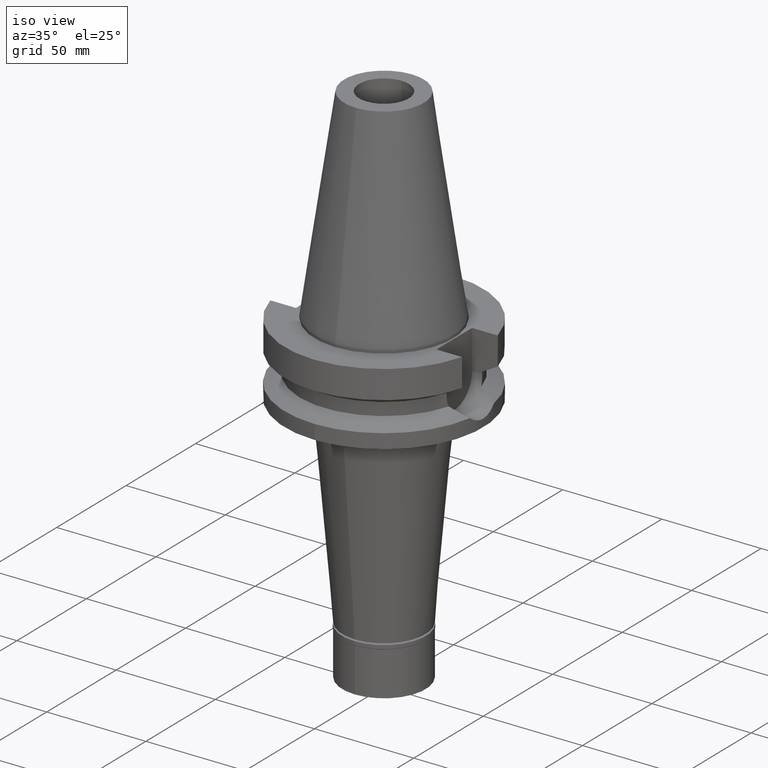
[diagram: clean part render]
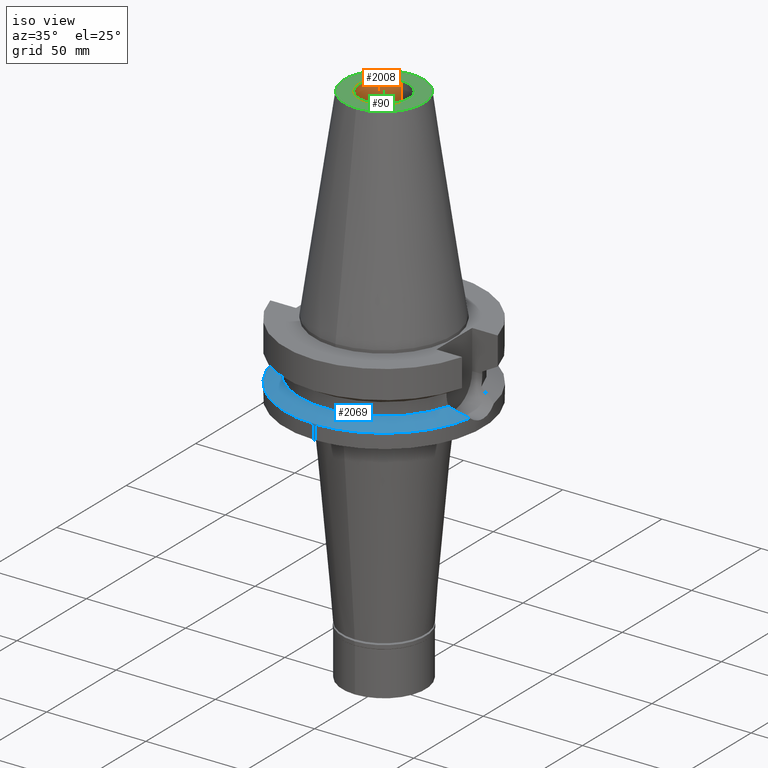
[diagram: same view with three faces highlighted in distinct colors, each labeled with its STEP entity id]
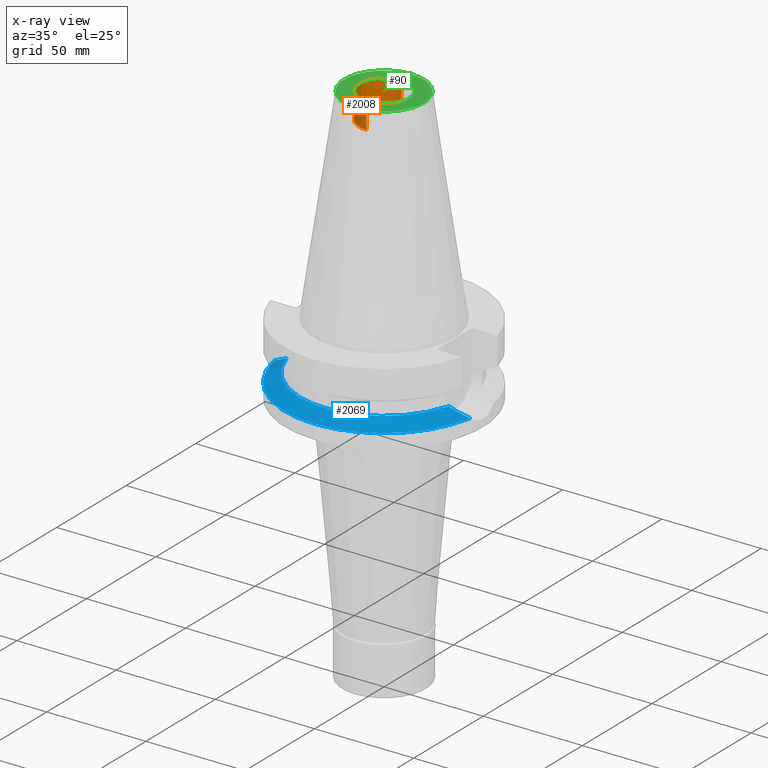
[diagram: x-ray of the same camera — body ghosted, the three highlighted faces saturated]
A machine part, iso view with three faces highlighted in distinct colors.
The next image is the same camera in x-ray (body ghosted, the three faces saturated) — at least one of them is partly hidden behind the body in this view.
Their STEP definitions:

[orange] entity #2008 — the highlighted cylindrical surface (edge-blend (fillet) strip) has radius 12.5 mm, axis along (0, 0, -1).
#55 = CARTESIAN_POINT ( 'NONE',  ( 0.0000000000000000000, -12.50000000000000000, 101.7999999999999972 ) ) ;
#325 = ORIENTED_EDGE ( 'NONE', *, *, #366, .T. ) ;
#336 = VERTEX_POINT ( 'NONE', #55 ) ;
#343 = FACE_OUTER_BOUND ( 'NONE', #2740, .T. ) ;
#366 = EDGE_CURVE ( 'NONE', #2766, #2984, #3004, .T. ) ;
#441 = DIRECTION ( 'NONE',  ( 0.0000000000000000000, 0.0000000000000000000, -1.000000000000000000 ) ) ;
#511 = CARTESIAN_POINT ( 'NONE',  ( 0.0000000000000000000, 2.630112698188999834E-14, 114.7650000000000006 ) ) ;
#524 = DIRECTION ( 'NONE',  ( 0.0000000000000000000, 0.0000000000000000000, 1.000000000000000000 ) ) ;
#541 = EDGE_CURVE ( 'NONE', #1937, #336, #1613, .T. ) ;
#586 = EDGE_CURVE ( 'NONE', #1937, #2766, #2772, .T. ) ;
#588 = CARTESIAN_POINT ( 'NONE',  ( 0.0000000000000000000, -12.50000000000000000, 88.79999999999999716 ) ) ;
#600 = DIRECTION ( 'NONE',  ( 0.0000000000000000000, 0.0000000000000000000, 1.000000000000000000 ) ) ;
#800 = CARTESIAN_POINT ( 'NONE',  ( 0.0000000000000000000, 12.50000000000000000, 88.79999999999999716 ) ) ;
#897 = DIRECTION ( 'NONE',  ( 0.0000000000000000000, -1.000000000000000000, 0.0000000000000000000 ) ) ;
#1222 = AXIS2_PLACEMENT_3D ( 'NONE', #3175, #441, #897 ) ;
#1337 = CYLINDRICAL_SURFACE ( 'NONE', #2659, 12.50000000000000000 ) ;
#1418 = VECTOR ( 'NONE', #600, 1000.000000000000000 ) ;
#1544 = CARTESIAN_POINT ( 'NONE',  ( 0.0000000000000000000, -12.50000000000000000, 88.79999999999999716 ) ) ;
#1613 = LINE ( 'NONE', #588, #1418 ) ;
#1719 = AXIS2_PLACEMENT_3D ( 'NONE', #2941, #2959, #1919 ) ;
#1760 = DIRECTION ( 'NONE',  ( 0.0000000000000000000, -1.000000000000000000, 0.0000000000000000000 ) ) ;
#1919 = DIRECTION ( 'NONE',  ( 0.0000000000000000000, 1.000000000000000000, 0.0000000000000000000 ) ) ;
#1937 = VERTEX_POINT ( 'NONE', #1544 ) ;
#2008 = ADVANCED_FACE ( 'NONE', ( #343 ), #1337, .F. ) ;
#2249 = ORIENTED_EDGE ( 'NONE', *, *, #2407, .T. ) ;
#2260 = VECTOR ( 'NONE', #524, 1000.000000000000000 ) ;
#2280 = ORIENTED_EDGE ( 'NONE', *, *, #586, .T. ) ;
#2407 = EDGE_CURVE ( 'NONE', #2984, #336, #3060, .T. ) ;
#2453 = CARTESIAN_POINT ( 'NONE',  ( 0.0000000000000000000, 12.50000000000000000, 101.7999999999999972 ) ) ;
#2617 = CARTESIAN_POINT ( 'NONE',  ( 0.0000000000000000000, 12.50000000000000000, 88.79999999999999716 ) ) ;
#2659 = AXIS2_PLACEMENT_3D ( 'NONE', #511, #2980, #1760 ) ;
#2740 = EDGE_LOOP ( 'NONE', ( #2249, #2978, #2280, #325 ) ) ;
#2766 = VERTEX_POINT ( 'NONE', #2617 ) ;
#2772 = CIRCLE ( 'NONE', #1222, 12.50000000000000000 ) ;
#2941 = CARTESIAN_POINT ( 'NONE',  ( 0.0000000000000000000, 2.630112698188999834E-14, 101.7999999999999972 ) ) ;
#2959 = DIRECTION ( 'NONE',  ( 0.0000000000000000000, 0.0000000000000000000, 1.000000000000000000 ) ) ;
#2978 = ORIENTED_EDGE ( 'NONE', *, *, #541, .F. ) ;
#2980 = DIRECTION ( 'NONE',  ( 0.0000000000000000000, 0.0000000000000000000, -1.000000000000000000 ) ) ;
#2984 = VERTEX_POINT ( 'NONE', #2453 ) ;
#3004 = LINE ( 'NONE', #800, #2260 ) ;
#3060 = CIRCLE ( 'NONE', #1719, 12.50000000000000000 ) ;
#3175 = CARTESIAN_POINT ( 'NONE',  ( 0.0000000000000000000, 2.630112698188999834E-14, 88.79999999999999716 ) ) ;

[blue] entity #2069 — the highlighted conical surface has half-angle 60 deg.
#54 = ORIENTED_EDGE ( 'NONE', *, *, #2850, .F. ) ;
#99 = CARTESIAN_POINT ( 'NONE',  ( 45.19859105778819242, -10.43329533872213766, -28.65160101983898144 ) ) ;
#102 = CARTESIAN_POINT ( 'NONE',  ( -44.01771955491133781, -10.87571219025350722, -28.04378263976339625 ) ) ;
#143 = ORIENTED_EDGE ( 'NONE', *, *, #306, .F. ) ;
#172 = VERTEX_POINT ( 'NONE', #223 ) ;
#223 = CARTESIAN_POINT ( 'NONE',  ( 40.85052569294000335, -11.72538061688000077, -26.40718074535000426 ) ) ;
#306 = EDGE_CURVE ( 'NONE', #1025, #172, #2471, .T. ) ;
#311 = CARTESIAN_POINT ( 'NONE',  ( 41.72590016032629023, -11.52209377113396016, -26.86058262674692187 ) ) ;
#443 = EDGE_CURVE ( 'NONE', #2182, #1025, #1546, .T. ) ;
#449 = EDGE_CURVE ( 'NONE', #1557, #1177, #1002, .T. ) ;
#518 = CONICAL_SURFACE ( 'NONE', #1095, 46.25000000000000000, 1.047197551196400456 ) ;
#536 = AXIS2_PLACEMENT_3D ( 'NONE', #2090, #1879, #827 ) ;
#681 = CARTESIAN_POINT ( 'NONE',  ( -46.22843264989457879, -10.03199715389320268, -29.18088417617022756 ) ) ;
#687 = CARTESIAN_POINT ( 'NONE',  ( -48.08197963779082329, -9.200190436425408791, -30.13259996065814761 ) ) ;
#807 = CARTESIAN_POINT ( 'NONE',  ( 44.62920876815107363, -10.63817629232460682, -28.35862114344412532 ) ) ;
#822 = CARTESIAN_POINT ( 'NONE',  ( 43.71201865152598742, -10.94531036526928425, -27.88620737511890368 ) ) ;
#827 = DIRECTION ( 'NONE',  ( 0.9852500129747439050, -0.1711210446826074982, 0.0000000000000000000 ) ) ;
#832 = CARTESIAN_POINT ( 'NONE',  ( 0.0000000000000000000, 0.0000000000000000000, -26.40718074535000426 ) ) ;
#859 = CARTESIAN_POINT ( 'NONE',  ( 45.34789677712240064, -10.37745736648755290, -28.72840086249075497 ) ) ;
#877 = CARTESIAN_POINT ( 'NONE',  ( -42.52907658095612220, -11.33557336505510982, -27.27658939159396212 ) ) ;
#919 = EDGE_CURVE ( 'NONE', #172, #1557, #1114, .T. ) ;
#1002 = CIRCLE ( 'NONE', #536, 50.00000000000000000 ) ;
#1025 = VERTEX_POINT ( 'NONE', #1922 ) ;
#1079 = CARTESIAN_POINT ( 'NONE',  ( -45.47936879556448275, -10.32798328989315451, -28.79570470443810848 ) ) ;
#1089 = DIRECTION ( 'NONE',  ( 0.0000000000000000000, -1.000000000000000000, 0.0000000000000000000 ) ) ;
#1095 = AXIS2_PLACEMENT_3D ( 'NONE', #2879, #1407, #1089 ) ;
#1107 = CARTESIAN_POINT ( 'NONE',  ( 40.85052569294000335, -11.72538061688000077, -26.40718074535000426 ) ) ;
#1114 = B_SPLINE_CURVE_WITH_KNOTS ( 'NONE', 3,
 ( #1107, #311, #2334, #822, #2060, #807, #1874, #99, #859, #2547, #3035, #2104, #1848, #1350, #2591 ),
 .UNSPECIFIED., .F., .F.,
 ( 4, 2, 2, 1, 1, 1, 2, 2, 4 ),
 ( 0.0000000000000000000, 0.2500000000000137668, 0.3750000000000206501, 0.4375000000000240918, 0.4687500000000247580, 0.4843750000000251466, 0.4921875000000251466, 0.5000000000000250910, 1.000000000000000000 ),
 .UNSPECIFIED. ) ;
#1177 = VERTEX_POINT ( 'NONE', #1388 ) ;
#1299 = ORIENTED_EDGE ( 'NONE', *, *, #443, .F. ) ;
#1349 = FACE_OUTER_BOUND ( 'NONE', #1541, .T. ) ;
#1350 = CARTESIAN_POINT ( 'NONE',  ( 48.17420032857211964, -9.180590730264180266, -30.17994754109454547 ) ) ;
#1388 = CARTESIAN_POINT ( 'NONE',  ( 0.0000000000000000000, -50.00000000000000000, -30.73730776426999967 ) ) ;
#1407 = DIRECTION ( 'NONE',  ( 0.0000000000000000000, 0.0000000000000000000, -1.000000000000000000 ) ) ;
#1541 = EDGE_LOOP ( 'NONE', ( #54, #2889, #2356, #143, #1299 ) ) ;
#1546 = B_SPLINE_CURVE_WITH_KNOTS ( 'NONE', 3,
 ( #1875, #2802, #687, #2190, #2981, #681, #2946, #3085, #1079, #2353, #2851, #2838, #2323, #102, #877, #2373 ),
 .UNSPECIFIED., .F., .F.,
 ( 4, 2, 2, 1, 1, 1, 1, 2, 2, 4 ),
 ( 0.0000000000000000000, 0.2500000000000039968, 0.3750000000000049960, 0.4375000000000054956, 0.4687500000000056621, 0.4843750000000054401, 0.4921875000000043299, 0.4960937500000037748, 0.5000000000000032196, 1.000000000000000000 ),
 .UNSPECIFIED. ) ;
#1557 = VERTEX_POINT ( 'NONE', #2535 ) ;
#1594 = DIRECTION ( 'NONE',  ( 0.0000000000000000000, -1.000000000000000000, 0.0000000000000000000 ) ) ;
#1835 = AXIS2_PLACEMENT_3D ( 'NONE', #2112, #1890, #2876 ) ;
#1848 = CARTESIAN_POINT ( 'NONE',  ( 46.91863993414532530, -9.778693490640506525, -29.53628139518374240 ) ) ;
#1860 = CARTESIAN_POINT ( 'NONE',  ( -49.26250064874000145, -8.556052234130000045, -30.73730776426999967 ) ) ;
#1874 = CARTESIAN_POINT ( 'NONE',  ( 44.89583052612895386, -10.54429304563547376, -28.49584424594169363 ) ) ;
#1875 = CARTESIAN_POINT ( 'NONE',  ( -49.26250064874000145, -8.556052234130000045, -30.73730776426999967 ) ) ;
#1879 = DIRECTION ( 'NONE',  ( 0.0000000000000000000, 0.0000000000000000000, -1.000000000000000000 ) ) ;
#1890 = DIRECTION ( 'NONE',  ( 0.0000000000000000000, 0.0000000000000000000, -1.000000000000000000 ) ) ;
#1922 = CARTESIAN_POINT ( 'NONE',  ( -40.85052569294000335, -11.72538061688000077, -26.40718074535000426 ) ) ;
#2044 = CIRCLE ( 'NONE', #1835, 50.00000000000000000 ) ;
#2060 = CARTESIAN_POINT ( 'NONE',  ( 44.08648161107352337, -10.82400520407422562, -28.07917497306296539 ) ) ;
#2069 = ADVANCED_FACE ( 'NONE', ( #1349 ), #518, .T. ) ;
#2090 = CARTESIAN_POINT ( 'NONE',  ( 0.0000000000000000000, 0.0000000000000000000, -30.73730776426999967 ) ) ;
#2104 = CARTESIAN_POINT ( 'NONE',  ( 45.47358789563644876, -10.32988363272621868, -28.79304957371047990 ) ) ;
#2112 = CARTESIAN_POINT ( 'NONE',  ( 0.0000000000000000000, 0.0000000000000000000, -30.73730776426999967 ) ) ;
#2182 = VERTEX_POINT ( 'NONE', #1860 ) ;
#2190 = CARTESIAN_POINT ( 'NONE',  ( -47.09546812930723547, -9.660553051291596915, -29.62633418838047206 ) ) ;
#2311 = DIRECTION ( 'NONE',  ( 0.0000000000000000000, 0.0000000000000000000, 1.000000000000000000 ) ) ;
#2323 = CARTESIAN_POINT ( 'NONE',  ( -45.32660098246103786, -10.38562687605666746, -28.71711940367496751 ) ) ;
#2334 = CARTESIAN_POINT ( 'NONE',  ( 42.55069520839606412, -11.29929921158055528, -27.28706546306013792 ) ) ;
#2353 = CARTESIAN_POINT ( 'NONE',  ( -45.39806531743589346, -10.35875764774025320, -28.75388227991981793 ) ) ;
#2356 = ORIENTED_EDGE ( 'NONE', *, *, #919, .F. ) ;
#2373 = CARTESIAN_POINT ( 'NONE',  ( -40.85052569294000335, -11.72538061688000077, -26.40718074535000426 ) ) ;
#2471 = CIRCLE ( 'NONE', #2571, 42.50000000000000000 ) ;
#2535 = CARTESIAN_POINT ( 'NONE',  ( 49.26250064874000145, -8.556052234130000045, -30.73730776426999967 ) ) ;
#2547 = CARTESIAN_POINT ( 'NONE',  ( 45.41144039687376477, -10.35345708576471679, -28.76108458968403525 ) ) ;
#2571 = AXIS2_PLACEMENT_3D ( 'NONE', #832, #2311, #1594 ) ;
#2591 = CARTESIAN_POINT ( 'NONE',  ( 49.26250064874000145, -8.556052234130000045, -30.73730776426999967 ) ) ;
#2802 = CARTESIAN_POINT ( 'NONE',  ( -48.69471142110356254, -8.881887138133908621, -30.44652118195681467 ) ) ;
#2838 = CARTESIAN_POINT ( 'NONE',  ( -45.33980487532517145, -10.38067501081927091, -28.72391190103832059 ) ) ;
#2850 = EDGE_CURVE ( 'NONE', #1177, #2182, #2044, .T. ) ;
#2851 = CARTESIAN_POINT ( 'NONE',  ( -45.36312221893381746, -10.37191262343441878, -28.73590691326878854 ) ) ;
#2876 = DIRECTION ( 'NONE',  ( 0.0000000000000000000, -1.000000000000000000, 0.0000000000000000000 ) ) ;
#2879 = CARTESIAN_POINT ( 'NONE',  ( 0.0000000000000000000, 0.0000000000000000000, -28.57224425480999841 ) ) ;
#2889 = ORIENTED_EDGE ( 'NONE', *, *, #449, .F. ) ;
#2946 = CARTESIAN_POINT ( 'NONE',  ( -45.96073794980038230, -10.14115512855841494, -29.04327255906435568 ) ) ;
#2981 = CARTESIAN_POINT ( 'NONE',  ( -46.75539532089361217, -9.811152715186009843, -29.45168974284336727 ) ) ;
#3035 = CARTESIAN_POINT ( 'NONE',  ( 45.45370402211300132, -10.33744173023089097, -28.78282259273581545 ) ) ;
#3085 = CARTESIAN_POINT ( 'NONE',  ( -45.64105407831656436, -10.26611969352383014, -28.87886888763697968 ) ) ;

[green] entity #90 — the highlighted planar face has unit normal (0, 0, -1).
#55 = CARTESIAN_POINT ( 'NONE',  ( 0.0000000000000000000, -12.50000000000000000, 101.7999999999999972 ) ) ;
#90 = ADVANCED_FACE ( 'NONE', ( #1625, #2380 ), #2621, .F. ) ;
#230 = CARTESIAN_POINT ( 'NONE',  ( 0.0000000000000000000, 1.847992019912999597E-14, 101.7999999999999972 ) ) ;
#336 = VERTEX_POINT ( 'NONE', #55 ) ;
#362 = AXIS2_PLACEMENT_3D ( 'NONE', #421, #3172, #396 ) ;
#396 = DIRECTION ( 'NONE',  ( 0.0000000000000000000, -1.000000000000000000, 0.0000000000000000000 ) ) ;
#421 = CARTESIAN_POINT ( 'NONE',  ( 0.0000000000000000000, 2.630112698188999834E-14, 101.7999999999999972 ) ) ;
#440 = DIRECTION ( 'NONE',  ( 0.0000000000000000000, -1.000000000000000000, 0.0000000000000000000 ) ) ;
#575 = AXIS2_PLACEMENT_3D ( 'NONE', #626, #3123, #1643 ) ;
#626 = CARTESIAN_POINT ( 'NONE',  ( 0.0000000000000000000, 1.847992019912999597E-14, 101.7999999999999972 ) ) ;
#665 = EDGE_LOOP ( 'NONE', ( #2144, #1747 ) ) ;
#1170 = EDGE_CURVE ( 'NONE', #336, #2984, #1766, .T. ) ;
#1202 = CIRCLE ( 'NONE', #1614, 20.07942971896000017 ) ;
#1480 = EDGE_LOOP ( 'NONE', ( #1756, #2496 ) ) ;
#1488 = CARTESIAN_POINT ( 'NONE',  ( 0.0000000000000000000, 2.471337240678999545E-14, 101.7999999999999972 ) ) ;
#1500 = DIRECTION ( 'NONE',  ( 0.0000000000000000000, -1.000000000000000000, 0.0000000000000000000 ) ) ;
#1614 = AXIS2_PLACEMENT_3D ( 'NONE', #230, #1970, #440 ) ;
#1625 = FACE_OUTER_BOUND ( 'NONE', #665, .T. ) ;
#1643 = DIRECTION ( 'NONE',  ( 0.0000000000000000000, 1.000000000000000000, 0.0000000000000000000 ) ) ;
#1719 = AXIS2_PLACEMENT_3D ( 'NONE', #2941, #2959, #1919 ) ;
#1725 = CARTESIAN_POINT ( 'NONE',  ( 0.0000000000000000000, 20.07942971896000017, 101.7999999999999972 ) ) ;
#1747 = ORIENTED_EDGE ( 'NONE', *, *, #1905, .F. ) ;
#1756 = ORIENTED_EDGE ( 'NONE', *, *, #2407, .F. ) ;
#1766 = CIRCLE ( 'NONE', #362, 12.50000000000000000 ) ;
#1892 = VERTEX_POINT ( 'NONE', #1725 ) ;
#1905 = EDGE_CURVE ( 'NONE', #2848, #1892, #1202, .T. ) ;
#1919 = DIRECTION ( 'NONE',  ( 0.0000000000000000000, 1.000000000000000000, 0.0000000000000000000 ) ) ;
#1970 = DIRECTION ( 'NONE',  ( 0.0000000000000000000, 0.0000000000000000000, -1.000000000000000000 ) ) ;
#1990 = CIRCLE ( 'NONE', #575, 20.07942971896000017 ) ;
#2144 = ORIENTED_EDGE ( 'NONE', *, *, #2733, .F. ) ;
#2380 = FACE_BOUND ( 'NONE', #1480, .T. ) ;
#2407 = EDGE_CURVE ( 'NONE', #2984, #336, #3060, .T. ) ;
#2453 = CARTESIAN_POINT ( 'NONE',  ( 0.0000000000000000000, 12.50000000000000000, 101.7999999999999972 ) ) ;
#2475 = DIRECTION ( 'NONE',  ( 0.0000000000000000000, 0.0000000000000000000, -1.000000000000000000 ) ) ;
#2496 = ORIENTED_EDGE ( 'NONE', *, *, #1170, .F. ) ;
#2621 = PLANE ( 'NONE',  #2769 ) ;
#2733 = EDGE_CURVE ( 'NONE', #1892, #2848, #1990, .T. ) ;
#2769 = AXIS2_PLACEMENT_3D ( 'NONE', #1488, #2475, #1500 ) ;
#2848 = VERTEX_POINT ( 'NONE', #3104 ) ;
#2941 = CARTESIAN_POINT ( 'NONE',  ( 0.0000000000000000000, 2.630112698188999834E-14, 101.7999999999999972 ) ) ;
#2959 = DIRECTION ( 'NONE',  ( 0.0000000000000000000, 0.0000000000000000000, 1.000000000000000000 ) ) ;
#2984 = VERTEX_POINT ( 'NONE', #2453 ) ;
#3060 = CIRCLE ( 'NONE', #1719, 12.50000000000000000 ) ;
#3104 = CARTESIAN_POINT ( 'NONE',  ( 0.0000000000000000000, -20.07942971896000017, 101.7999999999999972 ) ) ;
#3123 = DIRECTION ( 'NONE',  ( 0.0000000000000000000, 0.0000000000000000000, -1.000000000000000000 ) ) ;
#3172 = DIRECTION ( 'NONE',  ( 0.0000000000000000000, 0.0000000000000000000, 1.000000000000000000 ) ) ;